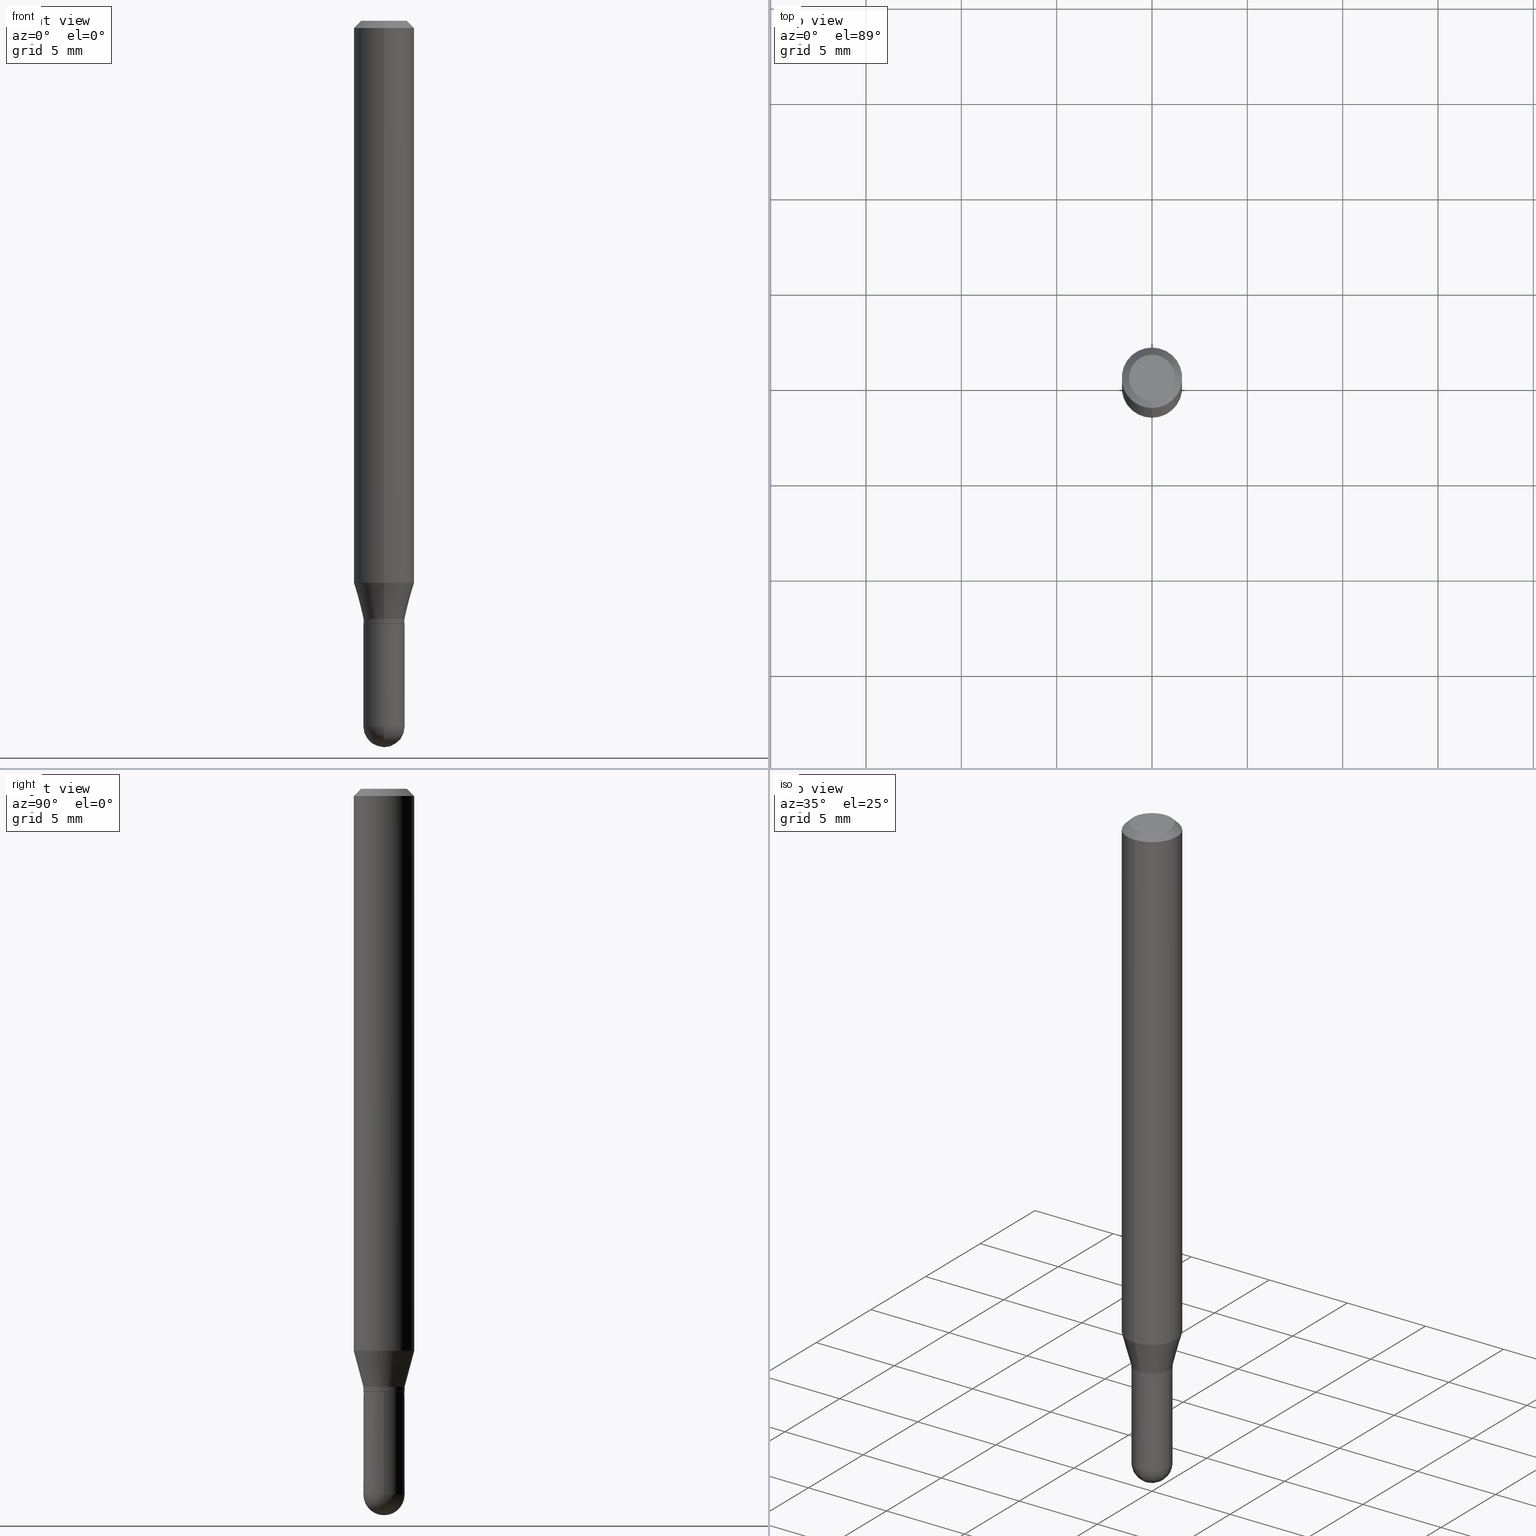
[diagram: canonical four-view strip — front | top / right | iso, engineering-drawing reading convention]
A machine part, canonical four-view strip (front | top / right | iso — engineering-drawing reading convention). The complete STEP part file that produces these views, byte-faithful:
ISO-10303-21;
HEADER;
FILE_DESCRIPTION (( 'STEP AP203' ),
    '1' );
FILE_NAME ('02631.STEP',
    '2024-03-07T20:54:33',
    ( '' ),
    ( '' ),
    'SwSTEP 2.0',
    'SolidWorks 2023',
    '' );
FILE_SCHEMA (( 'CONFIG_CONTROL_DESIGN' ));
ENDSEC;

DATA;
#1 = EDGE_LOOP ( 'NONE', ( #71, #469, #320, #224 ) ) ;
#2 = FACE_OUTER_BOUND ( 'NONE', #87, .T. ) ;
#3 = CLOSED_SHELL ( 'NONE', ( #455, #234, #332, #381, #203 ) ) ;
#4 = VECTOR ( 'NONE', #168, 39.37007874015748143 ) ;
#5 = APPLICATION_CONTEXT ( 'configuration controlled 3d designs of mechanical parts and assemblies' ) ;
#6 = CARTESIAN_POINT ( 'NONE',  ( -4.287811248607203282E-16, -0.06250000000000005551, -0.01500000000000011047 ) ) ;
#7 = EDGE_CURVE ( 'NONE', #108, #248, #500, .T. ) ;
#8 = ADVANCED_FACE ( 'NONE', ( #152 ), #307, .T. ) ;
#9 = ORIENTED_EDGE ( 'NONE', *, *, #295, .F. ) ;
#10 = CARTESIAN_POINT ( 'NONE',  ( -4.364351673553916201E-16, -0.06250000000000000000, 2.182108451735135262E-16 ) ) ;
#11 = CARTESIAN_POINT ( 'NONE',  ( -2.967759138016355400E-16, -0.04250000000000423578, -1.235000000000000098 ) ) ;
#12 = ORIENTED_EDGE ( 'NONE', *, *, #400, .T. ) ;
#13 = AXIS2_PLACEMENT_3D ( 'NONE', #191, #156, #352 ) ;
#14 = CC_DESIGN_APPROVAL ( #118, ( #294 ) ) ;
#15 = CARTESIAN_POINT ( 'NONE',  ( -3.773273898774340269E-16, -0.04749999999999999362, -1.623118266434685701E-16 ) ) ;
#16 = ORIENTED_EDGE ( 'NONE', *, *, #127, .T. ) ;
#17 = CARTESIAN_POINT ( 'NONE',  ( -2.932844324627926808E-16, -0.04200000000000434636, -1.244999999999999885 ) ) ;
#18 = ORIENTED_EDGE ( 'NONE', *, *, #247, .T. ) ;
#19 = PERSON_AND_ORGANIZATION_ROLE ( 'design_owner' ) ;
#20 = CIRCLE ( 'NONE', #506, 0.04250000000000000999 ) ;
#21 = AXIS2_PLACEMENT_3D ( 'NONE', #205, #243, #425 ) ;
#22 = APPROVAL_STATUS ( 'not_yet_approved' ) ;
#23 = DIRECTION ( 'NONE',  ( -2.445544093742278605E-29, 3.491373522776216420E-15, 1.000000000000000000 ) ) ;
#24 = EDGE_CURVE ( 'NONE', #415, #189, #485, .T. ) ;
#25 = CC_DESIGN_PERSON_AND_ORGANIZATION_ASSIGNMENT ( #237, #343, ( #294 ) ) ;
#26 = LINE ( 'NONE', #149, #157 ) ;
#27 = DIRECTION ( 'NONE',  ( -6.982962677686265922E-15, -1.000000000000000000, 0.000000000000000000 ) ) ;
#28 = ORIENTED_EDGE ( 'NONE', *, *, #148, .F. ) ;
#29 = APPROVAL_PERSON_ORGANIZATION ( #194, #394, #351 ) ;
#30 = CC_DESIGN_PERSON_AND_ORGANIZATION_ASSIGNMENT ( #401, #19, ( #470 ) ) ;
#31 = ORIENTED_EDGE ( 'NONE', *, *, #420, .T. ) ;
#32 = VERTEX_POINT ( 'NONE', #454 ) ;
#33 = CARTESIAN_POINT ( 'NONE',  ( 2.837709059571790746E-29, -4.051246633124596325E-15, -1.160358983848622572 ) ) ;
#34 = APPROVAL_STATUS ( 'not_yet_approved' ) ;
#35 = CARTESIAN_POINT ( 'NONE',  ( 4.440892098500912124E-16, 0.06249999999999598932, -1.160358983848622794 ) ) ;
#36 = APPROVAL_ROLE ( '' ) ;
#37 = AXIS2_PLACEMENT_3D ( 'NONE', #43, #116, #344 ) ;
#38 = CIRCLE ( 'NONE', #447, 0.04249999999999991979 ) ;
#39 = CARTESIAN_POINT ( 'NONE',  ( 8.025103541319487376E-45, -1.145701445064732670E-30, -3.281520689753388471E-16 ) ) ;
#40 = CC_DESIGN_APPROVAL ( #323, ( #200 ) ) ;
#41 = ADVANCED_FACE ( 'NONE', ( #413 ), #442, .T. ) ;
#42 = DIRECTION ( 'NONE',  ( -2.445468806185136597E-29, 3.491481338843145583E-15, 1.000000000000000000 ) ) ;
#43 = CARTESIAN_POINT ( 'NONE',  ( 3.564270785014837509E-29, -5.088834051363884851E-15, -1.457500000000000240 ) ) ;
#44 = ORIENTED_EDGE ( 'NONE', *, *, #261, .T. ) ;
#45 = CARTESIAN_POINT ( 'NONE',  ( 3.668316140613498255E-31, -5.237060284164438941E-17, -0.01500000000000032904 ) ) ;
#46 = VECTOR ( 'NONE', #147, 39.37007874015748143 ) ;
#47 = DIRECTION ( 'NONE',  ( -2.445544093742278605E-29, 3.491373522776216420E-15, 1.000000000000000000 ) ) ;
#48 = EDGE_LOOP ( 'NONE', ( #453, #44, #9, #137 ) ) ;
#49 = CARTESIAN_POINT ( 'NONE',  ( 2.837709059571790746E-29, -4.051246633124596325E-15, -1.160358983848622572 ) ) ;
#50 = ORIENTED_EDGE ( 'NONE', *, *, #98, .F. ) ;
#51 = EDGE_CURVE ( 'NONE', #399, #169, #183, .T. ) ;
#52 = LINE ( 'NONE', #472, #396 ) ;
#53 = CLOSED_SHELL ( 'NONE', ( #208, #232, #8, #41, #101, #117, #284, #274, #409, #288, #366, #77 ) ) ;
#54 = ORIENTED_EDGE ( 'NONE', *, *, #51, .T. ) ;
#55 = CIRCLE ( 'NONE', #166, 0.04250000000000009326 ) ;
#56 = ORIENTED_EDGE ( 'NONE', *, *, #131, .F. ) ;
#57 = CIRCLE ( 'NONE', #86, 0.06250000000000000000 ) ;
#58 = DIRECTION ( 'NONE',  ( -2.445544093742278605E-29, 3.491373522776216420E-15, 1.000000000000000000 ) ) ;
#59 = ORIENTED_EDGE ( 'NONE', *, *, #493, .F. ) ;
#60 = DIRECTION ( 'NONE',  ( -2.445544093742278605E-29, 3.491373522776216420E-15, 1.000000000000000000 ) ) ;
#61 = VERTEX_POINT ( 'NONE', #111 ) ;
#62 = PRODUCT_DEFINITION_SHAPE ( 'NONE', 'NONE',  #294 ) ;
#63 = LINE ( 'NONE', #405, #321 ) ;
#64 = DIRECTION ( 'NONE',  ( -2.445468806185136597E-29, 3.491481338843145583E-15, 1.000000000000000000 ) ) ;
#65 = VECTOR ( 'NONE', #260, 39.37007874015748143 ) ;
#66 = AXIS2_PLACEMENT_3D ( 'NONE', #356, #95, #355 ) ;
#67 = CARTESIAN_POINT ( 'NONE',  ( -4.364351673553912750E-16, -0.06250000000000005551, -0.01500000000000011047 ) ) ;
#68 = CARTESIAN_POINT ( 'NONE',  ( 3.730349362740815744E-16, 0.04249999999999561073, -1.235000000000000542 ) ) ;
#69 = ORIENTED_EDGE ( 'NONE', *, *, #98, .T. ) ;
#70 = ADVANCED_BREP_SHAPE_REPRESENTATION ( '02631', ( #91, #426, #269 ), #416 ) ;
#71 = ORIENTED_EDGE ( 'NONE', *, *, #264, .T. ) ;
#72 = CARTESIAN_POINT ( 'NONE',  ( 0.000000000000000000, 0.000000000000000000, 0.000000000000000000 ) ) ;
#73 = DIRECTION ( 'NONE',  ( 2.445544093742278605E-29, -3.491373522776216420E-15, -1.000000000000000000 ) ) ;
#74 = DIRECTION ( 'NONE',  ( -6.982962677686266711E-15, -1.000000000000000000, 6.427877632151220009E-15 ) ) ;
#75 = PERSON_AND_ORGANIZATION ( #367, #245 ) ;
#76 = DIRECTION ( 'NONE',  ( -2.445544093742278605E-29, 3.491373522776216420E-15, 1.000000000000000000 ) ) ;
#77 = ADVANCED_FACE ( 'NONE', ( #502 ), #379, .T. ) ;
#78 = EDGE_CURVE ( 'NONE', #399, #32, #196, .T. ) ;
#79 = AXIS2_PLACEMENT_3D ( 'NONE', #104, #331, #334 ) ;
#80 = AXIS2_PLACEMENT_3D ( 'NONE', #508, #310, #461 ) ;
#81 = DIRECTION ( 'NONE',  ( -6.982962677686266711E-15, -1.000000000000000000, 3.491373522776216420E-15 ) ) ;
#82 = DIRECTION ( 'NONE',  ( -2.445544093742278605E-29, 3.491373522776216420E-15, 1.000000000000000000 ) ) ;
#83 = CARTESIAN_POINT ( 'NONE',  ( 3.019806626980733170E-16, 0.04249999999999570788, -1.244500000000000606 ) ) ;
#84 = CARTESIAN_POINT ( 'NONE',  ( 3.044702396709137897E-29, -4.346760035856390206E-15, -1.245000000000000329 ) ) ;
#85 = EDGE_CURVE ( 'NONE', #415, #124, #146, .T. ) ;
#86 = AXIS2_PLACEMENT_3D ( 'NONE', #45, #289, #246 ) ;
#87 = EDGE_LOOP ( 'NONE', ( #325, #198, #18, #440 ) ) ;
#88 = ORIENTED_EDGE ( 'NONE', *, *, #143, .T. ) ;
#89 = DIRECTION ( 'NONE',  ( 2.445544093742278325E-29, -3.491373522776216420E-15, -1.000000000000000000 ) ) ;
#90 = DIRECTION ( 'NONE',  ( 2.445544093742278605E-29, -3.491373522776216420E-15, -1.000000000000000000 ) ) ;
#91 = MANIFOLD_SOLID_BREP ( 'Body-Move/Copy2[1]', #3 ) ;
#92 = ORIENTED_EDGE ( 'NONE', *, *, #24, .F. ) ;
#93 = FACE_OUTER_BOUND ( 'NONE', #408, .T. ) ;
#94 = ORIENTED_EDGE ( 'NONE', *, *, #217, .F. ) ;
#95 = DIRECTION ( 'NONE',  ( 1.000000000000000000, -6.982962677686265922E-15, 4.883557194083112901E-29 ) ) ;
#96 = VERTEX_POINT ( 'NONE', #68 ) ;
#97 = EDGE_LOOP ( 'NONE', ( #309, #180 ) ) ;
#98 = EDGE_CURVE ( 'NONE', #377, #61, #26, .T. ) ;
#99 = EDGE_CURVE ( 'NONE', #155, #108, #113, .T. ) ;
#100 =( NAMED_UNIT ( * ) PLANE_ANGLE_UNIT ( ) SI_UNIT ( $, .RADIAN. ) );
#101 = ADVANCED_FACE ( 'NONE', ( #282 ), #361, .T. ) ;
#102 = CARTESIAN_POINT ( 'NONE',  ( 3.564270785014837509E-29, -5.088834051363884851E-15, -1.457500000000000240 ) ) ;
#103 = FACE_OUTER_BOUND ( 'NONE', #178, .T. ) ;
#104 = CARTESIAN_POINT ( 'NONE',  ( 0.000000000000000000, 0.000000000000000000, 0.000000000000000000 ) ) ;
#105 = AXIS2_PLACEMENT_3D ( 'NONE', #185, #371, #145 ) ;
#106 = CYLINDRICAL_SURFACE ( 'NONE', #105, 0.04250000000000000999 ) ;
#107 = DIRECTION ( 'NONE',  ( -2.445544093742278605E-29, 3.491373522776216420E-15, 1.000000000000000000 ) ) ;
#108 = VERTEX_POINT ( 'NONE', #271 ) ;
#109 = SHAPE_DEFINITION_REPRESENTATION ( #62, #70 ) ;
#110 = ORIENTED_EDGE ( 'NONE', *, *, #247, .F. ) ;
#111 = CARTESIAN_POINT ( 'NONE',  ( 4.440892098500911138E-16, 0.06249999999999995143, -0.01500000000000054588 ) ) ;
#112 = APPLICATION_CONTEXT ( 'configuration controlled 3d designs of mechanical parts and assemblies' ) ;
#113 = CIRCLE ( 'NONE', #239, 0.04249999999999991979 ) ;
#114 = CONICAL_SURFACE ( 'NONE', #507, 0.04199999999999999567, 0.7853981633974739252 ) ;
#115 = APPROVAL_PERSON_ORGANIZATION ( #441, #118, #333 ) ;
#116 = DIRECTION ( 'NONE',  ( -2.445468806185136597E-29, 3.491481338843145583E-15, 1.000000000000000000 ) ) ;
#117 = ADVANCED_FACE ( 'NONE', ( #2 ), #457, .T. ) ;
#118 = APPROVAL ( #22, 'UNSPECIFIED' ) ;
#119 = CARTESIAN_POINT ( 'NONE',  ( 3.020246955771714794E-29, -4.311846300628628977E-15, -1.235000000000000320 ) ) ;
#120 = DATE_AND_TIME ( #503, #468 ) ;
#121 = DIRECTION ( 'NONE',  ( -2.445544093742278605E-29, 3.491373522776216420E-15, 1.000000000000000000 ) ) ;
#122 = SECURITY_CLASSIFICATION_LEVEL ( 'unclassified' ) ;
#123 = AXIS2_PLACEMENT_3D ( 'NONE', #419, #511, #422 ) ;
#124 = VERTEX_POINT ( 'NONE', #275 ) ;
#125 = LOCAL_TIME ( 15, 54, 33.00000000000000000, #460 ) ;
#126 = DIRECTION ( 'NONE',  ( -2.445544093742278605E-29, 3.491373522776216420E-15, 1.000000000000000000 ) ) ;
#127 = EDGE_CURVE ( 'NONE', #189, #399, #20, .T. ) ;
#128 = VERTEX_POINT ( 'NONE', #35 ) ;
#129 = DIRECTION ( 'NONE',  ( -6.982962677686266711E-15, -1.000000000000000000, 6.427877632151220009E-15 ) ) ;
#130 = DIRECTION ( 'NONE',  ( -2.445544093742278605E-29, 3.491373522776216420E-15, 1.000000000000000000 ) ) ;
#131 = EDGE_CURVE ( 'NONE', #155, #96, #204, .T. ) ;
#132 = ORIENTED_EDGE ( 'NONE', *, *, #24, .T. ) ;
#133 = CARTESIAN_POINT ( 'NONE',  ( 3.316907271900976096E-16, 0.04749999999999999362, -3.299162768195397005E-16 ) ) ;
#134 = AXIS2_PLACEMENT_3D ( 'NONE', #195, #353, #385 ) ;
#135 = DIRECTION ( 'NONE',  ( -2.445544093742278325E-29, 3.491373522776216420E-15, 1.000000000000000000 ) ) ;
#136 = FACE_OUTER_BOUND ( 'NONE', #364, .T. ) ;
#137 = ORIENTED_EDGE ( 'NONE', *, *, #400, .F. ) ;
#138 = SPHERICAL_SURFACE ( 'NONE', #66, 0.04250000000000009326 ) ;
#139 = ORIENTED_EDGE ( 'NONE', *, *, #300, .T. ) ;
#140 = ORIENTED_EDGE ( 'NONE', *, *, #131, .T. ) ;
#141 = CC_DESIGN_APPROVAL ( #394, ( #160 ) ) ;
#142 = PRODUCT_RELATED_PRODUCT_CATEGORY ( 'detail', '', ( #470 ) ) ;
#143 = EDGE_CURVE ( 'NONE', #32, #415, #259, .T. ) ;
#144 = ORIENTED_EDGE ( 'NONE', *, *, #78, .T. ) ;
#145 = DIRECTION ( 'NONE',  ( 1.000000000000000000, -6.982962677686266711E-15, 4.876176775795935793E-29 ) ) ;
#146 = LINE ( 'NONE', #296, #65 ) ;
#147 = DIRECTION ( 'NONE',  ( 5.024295867788190974E-15, 0.7071067811865681119, 0.7071067811865270336 ) ) ;
#148 = EDGE_CURVE ( 'NONE', #169, #124, #150, .T. ) ;
#149 = CARTESIAN_POINT ( 'NONE',  ( 4.364351673553919652E-16, 0.06249999999999995143, -0.01500000000000054588 ) ) ;
#150 = CIRCLE ( 'NONE', #497, 0.04249999999999999611 ) ;
#151 = CONICAL_SURFACE ( 'NONE', #173, 0.04199999999999999567, 0.7853981633974739252 ) ;
#152 = FACE_OUTER_BOUND ( 'NONE', #444, .T. ) ;
#153 = ORIENTED_EDGE ( 'NONE', *, *, #382, .T. ) ;
#154 = PERSON_AND_ORGANIZATION ( #367, #245 ) ;
#155 = VERTEX_POINT ( 'NONE', #83 ) ;
#156 = DIRECTION ( 'NONE',  ( -2.445468806185136597E-29, 3.491481338843145583E-15, 1.000000000000000000 ) ) ;
#157 = VECTOR ( 'NONE', #184, 39.37007874015748143 ) ;
#158 = CIRCLE ( 'NONE', #262, 0.04749999999999999362 ) ;
#159 = ORIENTED_EDGE ( 'NONE', *, *, #127, .F. ) ;
#160 = PRODUCT_DEFINITION_FORMATION_WITH_SPECIFIED_SOURCE ( 'ANY', '', #470, .NOT_KNOWN. ) ;
#161 = FACE_OUTER_BOUND ( 'NONE', #360, .T. ) ;
#162 = APPROVAL_DATE_TIME ( #202, #118 ) ;
#163 = CARTESIAN_POINT ( 'NONE',  ( -4.364351673553629746E-16, -0.06250000000000402456, -1.160358983848622350 ) ) ;
#164 = CALENDAR_DATE ( 2024, 7, 3 ) ;
#165 = LINE ( 'NONE', #327, #376 ) ;
#166 = AXIS2_PLACEMENT_3D ( 'NONE', #452, #498, #494 ) ;
#167 = DIRECTION ( 'NONE',  ( -2.445468806185136597E-29, 3.491481338843145583E-15, 1.000000000000000000 ) ) ;
#168 = DIRECTION ( 'NONE',  ( -2.445544093742278605E-29, 3.491373522776216420E-15, 1.000000000000000000 ) ) ;
#169 = VERTEX_POINT ( 'NONE', #380 ) ;
#170 = FACE_OUTER_BOUND ( 'NONE', #97, .T. ) ;
#171 = EDGE_CURVE ( 'NONE', #285, #369, #276, .T. ) ;
#172 = FACE_OUTER_BOUND ( 'NONE', #299, .T. ) ;
#173 = AXIS2_PLACEMENT_3D ( 'NONE', #438, #47, #218 ) ;
#174 = EDGE_CURVE ( 'NONE', #96, #248, #308, .T. ) ;
#175 = DIRECTION ( 'NONE',  ( -2.445544093742278605E-29, 3.491373522776216420E-15, 1.000000000000000000 ) ) ;
#176 = ORIENTED_EDGE ( 'NONE', *, *, #420, .F. ) ;
#177 = CARTESIAN_POINT ( 'NONE',  ( 3.560636328285825248E-29, -5.094038800260261442E-15, -1.457500000000000240 ) ) ;
#178 = EDGE_LOOP ( 'NONE', ( #16, #54, #176, #411, #132 ) ) ;
#179 = CARTESIAN_POINT ( 'NONE',  ( 3.044608663700495534E-29, -4.346894266859716647E-15, -1.245000000000000329 ) ) ;
#180 = ORIENTED_EDGE ( 'NONE', *, *, #192, .T. ) ;
#181 = CIRCLE ( 'NONE', #80, 0.04749999999999999362 ) ;
#182 =( LENGTH_UNIT ( ) NAMED_UNIT ( * ) SI_UNIT ( $, .METRE. ) );
#183 = LINE ( 'NONE', #302, #375 ) ;
#184 = DIRECTION ( 'NONE',  ( 4.937700262164548042E-15, 0.7071067811865451302, -0.7071067811865499042 ) ) ;
#185 = CARTESIAN_POINT ( 'NONE',  ( 0.000000000000000000, 0.000000000000000000, 0.000000000000000000 ) ) ;
#186 = ORIENTED_EDGE ( 'NONE', *, *, #51, .F. ) ;
#187 = CIRCLE ( 'NONE', #330, 0.06250000000000000000 ) ;
#188 = CARTESIAN_POINT ( 'NONE',  ( 2.984279490192724677E-16, 0.04199999999999565192, -1.245000000000000551 ) ) ;
#189 = VERTEX_POINT ( 'NONE', #466 ) ;
#190 = ORIENTED_EDGE ( 'NONE', *, *, #510, .F. ) ;
#191 = CARTESIAN_POINT ( 'NONE',  ( 0.000000000000000000, 0.000000000000000000, 0.000000000000000000 ) ) ;
#192 = EDGE_CURVE ( 'NONE', #291, #377, #158, .T. ) ;
#193 = EDGE_CURVE ( 'NONE', #222, #128, #187, .T. ) ;
#194 = PERSON_AND_ORGANIZATION ( #367, #245 ) ;
#195 = CARTESIAN_POINT ( 'NONE',  ( 3.044702396709137897E-29, -4.346760035856390206E-15, -1.245000000000000329 ) ) ;
#196 = CIRCLE ( 'NONE', #445, 0.04250000000000000999 ) ;
#197 = AXIS2_PLACEMENT_3D ( 'NONE', #133, #89, #393 ) ;
#198 = ORIENTED_EDGE ( 'NONE', *, *, #174, .T. ) ;
#199 = APPROVAL_STATUS ( 'not_yet_approved' ) ;
#200 = SECURITY_CLASSIFICATION ( '', '', #122 ) ;
#201 = CARTESIAN_POINT ( 'NONE',  ( 3.020246955771714794E-29, -4.311846300628628977E-15, -1.235000000000000320 ) ) ;
#202 = DATE_AND_TIME ( #509, #348 ) ;
#203 = ADVANCED_FACE ( 'NONE', ( #387 ), #504, .T. ) ;
#204 = LINE ( 'NONE', #236, #476 ) ;
#205 = CARTESIAN_POINT ( 'NONE',  ( 3.020246955771714794E-29, -4.311846300628628977E-15, -1.235000000000000320 ) ) ;
#206 = DIRECTION ( 'NONE',  ( -1.000000000000000000, 6.982962677686265922E-15, -4.876176775795935793E-29 ) ) ;
#207 = DIRECTION ( 'NONE',  ( -2.445544093742278605E-29, 3.491373522776216420E-15, 1.000000000000000000 ) ) ;
#208 = ADVANCED_FACE ( 'NONE', ( #161 ), #306, .T. ) ;
#209 = EDGE_CURVE ( 'NONE', #61, #477, #347, .T. ) ;
#210 = ORIENTED_EDGE ( 'NONE', *, *, #473, .T. ) ;
#211 = CARTESIAN_POINT ( 'NONE',  ( 3.840629472727447874E-16, 0.04749999999999999362, -4.939923113072091241E-16 ) ) ;
#212 = CARTESIAN_POINT ( 'NONE',  ( 0.000000000000000000, 0.000000000000000000, 0.000000000000000000 ) ) ;
#213 = AXIS2_PLACEMENT_3D ( 'NONE', #265, #370, #233 ) ;
#214 = AXIS2_PLACEMENT_3D ( 'NONE', #179, #297, #403 ) ;
#215 = ORIENTED_EDGE ( 'NONE', *, *, #7, .F. ) ;
#216 = ORIENTED_EDGE ( 'NONE', *, *, #99, .F. ) ;
#217 = EDGE_CURVE ( 'NONE', #377, #291, #181, .T. ) ;
#218 = DIRECTION ( 'NONE',  ( -6.982962677686265922E-15, -1.000000000000000000, 6.504399984914913214E-15 ) ) ;
#219 = CARTESIAN_POINT ( 'NONE',  ( -2.932844324627926808E-16, -0.04200000000000434636, -1.244999999999999885 ) ) ;
#220 =( CONVERSION_BASED_UNIT ( 'INCH', #410 ) LENGTH_UNIT ( ) NAMED_UNIT ( #490 ) );
#221 = AXIS2_PLACEMENT_3D ( 'NONE', #201, #317, #129 ) ;
#222 = VERTEX_POINT ( 'NONE', #163 ) ;
#223 = AXIS2_PLACEMENT_3D ( 'NONE', #84, #135, #363 ) ;
#224 = ORIENTED_EDGE ( 'NONE', *, *, #474, .F. ) ;
#225 = CC_DESIGN_PERSON_AND_ORGANIZATION_ASSIGNMENT ( #75, #311, ( #160 ) ) ;
#226 = EDGE_LOOP ( 'NONE', ( #230, #94, #69, #417 ) ) ;
#227 = APPLICATION_PROTOCOL_DEFINITION ( 'international standard', 'config_control_design', 1994, #5 ) ;
#228 = ORIENTED_EDGE ( 'NONE', *, *, #261, .F. ) ;
#229 = ORIENTED_EDGE ( 'NONE', *, *, #171, .T. ) ;
#230 = ORIENTED_EDGE ( 'NONE', *, *, #382, .F. ) ;
#231 = AXIS2_PLACEMENT_3D ( 'NONE', #287, #130, #479 ) ;
#232 = ADVANCED_FACE ( 'NONE', ( #242 ), #114, .T. ) ;
#233 = DIRECTION ( 'NONE',  ( 1.000000000000000000, -6.982962677686273810E-15, 0.000000000000000000 ) ) ;
#234 = ADVANCED_FACE ( 'NONE', ( #241 ), #388, .T. ) ;
#235 = CALENDAR_DATE ( 2024, 7, 3 ) ;
#236 = CARTESIAN_POINT ( 'NONE',  ( 3.019806626980419597E-16, 0.04249999999999991979, -1.483833747179889227E-16 ) ) ;
#237 = PERSON_AND_ORGANIZATION ( #367, #245 ) ;
#238 = DIRECTION ( 'NONE',  ( 1.000000000000000000, -6.982962677686265133E-15, 0.000000000000000000 ) ) ;
#239 = AXIS2_PLACEMENT_3D ( 'NONE', #336, #107, #281 ) ;
#240 = AXIS2_PLACEMENT_3D ( 'NONE', #431, #90, #428 ) ;
#241 = FACE_OUTER_BOUND ( 'NONE', #412, .T. ) ;
#242 = FACE_OUTER_BOUND ( 'NONE', #1, .T. ) ;
#243 = DIRECTION ( 'NONE',  ( -2.445544093742278605E-29, 3.491373522776216420E-15, 1.000000000000000000 ) ) ;
#244 = VECTOR ( 'NONE', #448, 39.37007874015748143 ) ;
#245 = ORGANIZATION ( 'UNSPECIFIED', 'UNSPECIFIED', '' ) ;
#246 = DIRECTION ( 'NONE',  ( -6.982962677686265922E-15, -1.000000000000000000, 3.483106191921935554E-15 ) ) ;
#247 = EDGE_CURVE ( 'NONE', #248, #222, #165, .T. ) ;
#248 = VERTEX_POINT ( 'NONE', #11 ) ;
#249 = CARTESIAN_POINT ( 'NONE',  ( -0.04250000000000000999, -4.415883496413759874E-15, -1.457500000000000240 ) ) ;
#250 = PLANE ( 'NONE',  #223 ) ;
#251 = ORIENTED_EDGE ( 'NONE', *, *, #192, .F. ) ;
#252 = CC_DESIGN_DATE_AND_TIME_ASSIGNMENT ( #120, #278, ( #200 ) ) ;
#253 = DIRECTION ( 'NONE',  ( 2.438088387897960049E-29, -3.491481338843145188E-15, -1.000000000000000000 ) ) ;
#254 = ORIENTED_EDGE ( 'NONE', *, *, #143, .F. ) ;
#255 = VERTEX_POINT ( 'NONE', #283 ) ;
#256 = DIRECTION ( 'NONE',  ( -1.000000000000000000, 6.982962677686265922E-15, -4.883557194083112340E-29 ) ) ;
#257 = ORIENTED_EDGE ( 'NONE', *, *, #171, .F. ) ;
#258 = LINE ( 'NONE', #188, #46 ) ;
#259 = CIRCLE ( 'NONE', #37, 0.04250000000000000999 ) ;
#260 = DIRECTION ( 'NONE',  ( -2.445468806185136877E-29, 3.491481338843145188E-15, 1.000000000000000000 ) ) ;
#261 = EDGE_CURVE ( 'NONE', #128, #61, #52, .T. ) ;
#262 = AXIS2_PLACEMENT_3D ( 'NONE', #39, #350, #423 ) ;
#263 = DIRECTION ( 'NONE',  ( -2.445544093742278605E-29, 3.491373522776216420E-15, 1.000000000000000000 ) ) ;
#264 = EDGE_CURVE ( 'NONE', #369, #285, #316, .T. ) ;
#265 = CARTESIAN_POINT ( 'NONE',  ( 3.564270785014837509E-29, -5.088834051363884851E-15, -1.457500000000000240 ) ) ;
#266 = MECHANICAL_CONTEXT ( 'NONE', #5, 'mechanical' ) ;
#267 = CARTESIAN_POINT ( 'NONE',  ( 3.668316140613498255E-31, -5.237060284164438941E-17, -0.01500000000000032904 ) ) ;
#268 = EDGE_LOOP ( 'NONE', ( #186, #144, #88, #430, #28 ) ) ;
#269 = AXIS2_PLACEMENT_3D ( 'NONE', #335, #373, #337 ) ;
#270 = COORDINATED_UNIVERSAL_TIME_OFFSET ( 5, 0, .BEHIND. ) ;
#271 = CARTESIAN_POINT ( 'NONE',  ( -2.967759138016344061E-16, -0.04250000000000413863, -1.244500000000000162 ) ) ;
#272 = ORIENTED_EDGE ( 'NONE', *, *, #484, .F. ) ;
#273 = DIRECTION ( 'NONE',  ( -2.445544093742278605E-29, 3.491373522776216420E-15, 1.000000000000000000 ) ) ;
#274 = ADVANCED_FACE ( 'NONE', ( #362 ), #301, .T. ) ;
#275 = CARTESIAN_POINT ( 'NONE',  ( 0.04249999999999999611, -4.643670180661383298E-15, -1.245000000000000329 ) ) ;
#276 = CIRCLE ( 'NONE', #134, 0.04199999999999999567 ) ;
#277 = CIRCLE ( 'NONE', #354, 0.04250000000000009326 ) ;
#278 = DATE_TIME_ROLE ( 'classification_date' ) ;
#279 = LOCAL_TIME ( 15, 54, 33.00000000000000000, #270 ) ;
#280 = ORIENTED_EDGE ( 'NONE', *, *, #148, .T. ) ;
#281 = DIRECTION ( 'NONE',  ( -6.982962677686266711E-15, -1.000000000000000000, 6.427877632151220009E-15 ) ) ;
#282 = FACE_OUTER_BOUND ( 'NONE', #439, .T. ) ;
#283 = CARTESIAN_POINT ( 'NONE',  ( 3.662751524184187344E-29, -5.245029131609283457E-15, -1.500000000000000444 ) ) ;
#284 = ADVANCED_FACE ( 'NONE', ( #93 ), #359, .T. ) ;
#285 = VERTEX_POINT ( 'NONE', #318 ) ;
#286 = CARTESIAN_POINT ( 'NONE',  ( 2.967759138016967261E-16, 0.04249999999999565237, -1.245000000000000551 ) ) ;
#287 = CARTESIAN_POINT ( 'NONE',  ( 3.044702396709137897E-29, -4.346760035856390206E-15, -1.245000000000000329 ) ) ;
#288 = ADVANCED_FACE ( 'NONE', ( #433 ), #250, .F. ) ;
#289 = DIRECTION ( 'NONE',  ( -2.445544093742278605E-29, 3.491373522776216420E-15, 1.000000000000000000 ) ) ;
#290 = AXIS2_PLACEMENT_3D ( 'NONE', #49, #175, #326 ) ;
#291 = VERTEX_POINT ( 'NONE', #15 ) ;
#292 = APPLICATION_PROTOCOL_DEFINITION ( 'international standard', 'config_control_design', 1994, #112 ) ;
#293 = DIRECTION ( 'NONE',  ( 6.982962677686265922E-15, 1.000000000000000000, -3.483106191921935554E-15 ) ) ;
#294 = PRODUCT_DEFINITION ( 'UNKNOWN', '', #160, #298 ) ;
#295 = EDGE_CURVE ( 'NONE', #477, #61, #57, .T. ) ;
#296 = CARTESIAN_POINT ( 'NONE',  ( 0.04250000000000000999, -2.967759138016664042E-16, 2.072375129713273202E-30 ) ) ;
#297 = DIRECTION ( 'NONE',  ( -2.445468806185136597E-29, 3.491481338843145583E-15, 1.000000000000000000 ) ) ;
#298 = DESIGN_CONTEXT ( 'detailed design', #112, 'design' ) ;
#299 = EDGE_LOOP ( 'NONE', ( #31, #280 ) ) ;
#300 = EDGE_CURVE ( 'NONE', #128, #222, #339, .T. ) ;
#301 = CONICAL_SURFACE ( 'NONE', #240, 0.06250000000000000000, 0.7853981633974483900 ) ;
#302 = CARTESIAN_POINT ( 'NONE',  ( -0.04250000000000000999, 3.019806626980426500E-16, -2.090547413358335560E-30 ) ) ;
#303 = DIRECTION ( 'NONE',  ( -4.937700262164674260E-15, -0.7071067811865632269, 0.7071067811865319186 ) ) ;
#304 = ORIENTED_EDGE ( 'NONE', *, *, #484, .T. ) ;
#305 = PERSON_AND_ORGANIZATION ( #367, #245 ) ;
#306 = CYLINDRICAL_SURFACE ( 'NONE', #386, 0.04249999999999991979 ) ;
#307 = CONICAL_SURFACE ( 'NONE', #429, 0.06250000000000000000, 0.7853981633974483900 ) ;
#308 = CIRCLE ( 'NONE', #21, 0.04249999999999991979 ) ;
#309 = ORIENTED_EDGE ( 'NONE', *, *, #217, .T. ) ;
#310 = DIRECTION ( 'NONE',  ( -2.445544093742278605E-29, 3.491373522776216420E-15, 1.000000000000000000 ) ) ;
#311 = PERSON_AND_ORGANIZATION_ROLE ( 'creator' ) ;
#312 = CARTESIAN_POINT ( 'NONE',  ( 3.044702396709137897E-29, -4.346760035856390206E-15, -1.245000000000000329 ) ) ;
#313 = DATE_AND_TIME ( #164, #279 ) ;
#314 = DIRECTION ( 'NONE',  ( 1.000000000000000000, -6.982962677686273810E-15, 0.000000000000000000 ) ) ;
#315 = AXIS2_PLACEMENT_3D ( 'NONE', #72, #23, #496 ) ;
#316 = CIRCLE ( 'NONE', #231, 0.04199999999999999567 ) ;
#317 = DIRECTION ( 'NONE',  ( -2.445544093742278605E-29, 3.491373522776216420E-15, 1.000000000000000000 ) ) ;
#318 = CARTESIAN_POINT ( 'NONE',  ( 3.002043058586724733E-16, 0.04199999999999565192, -1.245000000000000551 ) ) ;
#319 = LINE ( 'NONE', #6, #406 ) ;
#320 = ORIENTED_EDGE ( 'NONE', *, *, #451, .F. ) ;
#321 = VECTOR ( 'NONE', #487, 39.37007874015748143 ) ;
#322 = ORIENTED_EDGE ( 'NONE', *, *, #193, .F. ) ;
#323 = APPROVAL ( #34, 'UNSPECIFIED' ) ;
#324 = DIRECTION ( 'NONE',  ( -6.982962677686265922E-15, -1.000000000000000000, 6.427877632151193188E-15 ) ) ;
#325 = ORIENTED_EDGE ( 'NONE', *, *, #473, .F. ) ;
#326 = DIRECTION ( 'NONE',  ( -6.982962677686265922E-15, -1.000000000000000000, 4.370956789862821150E-15 ) ) ;
#327 = CARTESIAN_POINT ( 'NONE',  ( -2.967759138016355400E-16, -0.04250000000000423578, -1.235000000000000098 ) ) ;
#328 = EDGE_LOOP ( 'NONE', ( #59, #229, #491, #216 ) ) ;
#329 = CARTESIAN_POINT ( 'NONE',  ( 0.04250000000000000999, -5.014640072913468189E-15, -1.457500000000000240 ) ) ;
#330 = AXIS2_PLACEMENT_3D ( 'NONE', #33, #82, #346 ) ;
#331 = DIRECTION ( 'NONE',  ( -2.445544093742278605E-29, 3.491373522776216420E-15, 1.000000000000000000 ) ) ;
#332 = ADVANCED_FACE ( 'NONE', ( #172 ), #481, .F. ) ;
#333 = APPROVAL_ROLE ( '' ) ;
#334 = DIRECTION ( 'NONE',  ( -6.982962677686266711E-15, -1.000000000000000000, 3.491373522776216420E-15 ) ) ;
#335 = CARTESIAN_POINT ( 'NONE',  ( 0.000000000000000000, 0.000000000000000000, 0.000000000000000000 ) ) ;
#336 = CARTESIAN_POINT ( 'NONE',  ( 3.043479624662266601E-29, -4.345014349095002184E-15, -1.244500000000000384 ) ) ;
#337 = DIRECTION ( 'NONE',  ( 1.000000000000000000, 0.000000000000000000, 0.000000000000000000 ) ) ;
#338 = AXIS2_PLACEMENT_3D ( 'NONE', #119, #121, #74 ) ;
#339 = CIRCLE ( 'NONE', #290, 0.06250000000000000000 ) ;
#340 = ORIENTED_EDGE ( 'NONE', *, *, #99, .T. ) ;
#341 =( NAMED_UNIT ( * ) SI_UNIT ( $, .STERADIAN. ) SOLID_ANGLE_UNIT ( ) );
#342 = DIRECTION ( 'NONE',  ( -2.445468806185136877E-29, 3.491481338843145188E-15, 1.000000000000000000 ) ) ;
#343 = PERSON_AND_ORGANIZATION_ROLE ( 'creator' ) ;
#344 = DIRECTION ( 'NONE',  ( 1.000000000000000000, -6.982962677686273810E-15, 0.000000000000000000 ) ) ;
#345 = PERSON_AND_ORGANIZATION_ROLE ( 'classification_officer' ) ;
#346 = DIRECTION ( 'NONE',  ( -6.982962677686265922E-15, -1.000000000000000000, 4.370956789862821150E-15 ) ) ;
#347 = CIRCLE ( 'NONE', #123, 0.06250000000000000000 ) ;
#348 = LOCAL_TIME ( 15, 54, 33.00000000000000000, #378 ) ;
#349 = DATE_AND_TIME ( #505, #407 ) ;
#350 = DIRECTION ( 'NONE',  ( -2.445544093742278605E-29, 3.491373522776216420E-15, 1.000000000000000000 ) ) ;
#351 = APPROVAL_ROLE ( '' ) ;
#352 = DIRECTION ( 'NONE',  ( 1.000000000000000000, -6.982962677686266711E-15, 4.876176775795935793E-29 ) ) ;
#353 = DIRECTION ( 'NONE',  ( -2.445544093742278605E-29, 3.491373522776216420E-15, 1.000000000000000000 ) ) ;
#354 = AXIS2_PLACEMENT_3D ( 'NONE', #443, #256, #27 ) ;
#355 = DIRECTION ( 'NONE',  ( -6.982962677686265922E-15, -1.000000000000000000, 6.427877632151193188E-15 ) ) ;
#356 = CARTESIAN_POINT ( 'NONE',  ( 3.560636328285825248E-29, -5.094038800260261442E-15, -1.457500000000000240 ) ) ;
#357 = ORIENTED_EDGE ( 'NONE', *, *, #451, .T. ) ;
#358 = ORIENTED_EDGE ( 'NONE', *, *, #492, .T. ) ;
#359 = CYLINDRICAL_SURFACE ( 'NONE', #424, 0.06250000000000000000 ) ;
#360 = EDGE_LOOP ( 'NONE', ( #357, #140, #190, #215 ) ) ;
#361 = CONICAL_SURFACE ( 'NONE', #221, 0.04249999999999991979, 0.2617993877991497409 ) ;
#362 = FACE_OUTER_BOUND ( 'NONE', #226, .T. ) ;
#363 = DIRECTION ( 'NONE',  ( -6.982962677686265922E-15, -1.000000000000000000, 3.491373522776216420E-15 ) ) ;
#364 = EDGE_LOOP ( 'NONE', ( #398, #304, #435, #159 ) ) ;
#365 = CARTESIAN_POINT ( 'NONE',  ( 3.020246955771714794E-29, -4.311846300628628977E-15, -1.235000000000000320 ) ) ;
#366 = ADVANCED_FACE ( 'NONE', ( #391 ), #151, .T. ) ;
#367 = PERSON ( 'UNSPECIFIED', 'UNSPECIFIED', 'UNSPECIFIED', ('UNSPECIFIED'), ('UNSPECIFIED'), ('UNSPECIFIED') ) ;
#368 = AXIS2_PLACEMENT_3D ( 'NONE', #286, #253, #206 ) ;
#369 = VERTEX_POINT ( 'NONE', #17 ) ;
#370 = DIRECTION ( 'NONE',  ( -2.445468806185136597E-29, 3.491481338843145583E-15, 1.000000000000000000 ) ) ;
#371 = DIRECTION ( 'NONE',  ( -2.445468806185136597E-29, 3.491481338843145583E-15, 1.000000000000000000 ) ) ;
#372 = DIRECTION ( 'NONE',  ( 1.000000000000000000, -6.982962677686273810E-15, 0.000000000000000000 ) ) ;
#373 = DIRECTION ( 'NONE',  ( 0.000000000000000000, 0.000000000000000000, 1.000000000000000000 ) ) ;
#374 = ORIENTED_EDGE ( 'NONE', *, *, #510, .T. ) ;
#375 = VECTOR ( 'NONE', #342, 39.37007874015748143 ) ;
#376 = VECTOR ( 'NONE', #434, 39.37007874015748854 ) ;
#377 = VERTEX_POINT ( 'NONE', #211 ) ;
#378 = COORDINATED_UNIVERSAL_TIME_OFFSET ( 5, 0, .BEHIND. ) ;
#379 = CYLINDRICAL_SURFACE ( 'NONE', #79, 0.04249999999999991979 ) ;
#380 = CARTESIAN_POINT ( 'NONE',  ( -0.04249999999999999611, -4.415883496413758296E-15, -1.245000000000000329 ) ) ;
#381 = ADVANCED_FACE ( 'NONE', ( #136 ), #138, .T. ) ;
#382 = EDGE_CURVE ( 'NONE', #291, #477, #319, .T. ) ;
#383 = ORIENTED_EDGE ( 'NONE', *, *, #209, .F. ) ;
#384 = COORDINATED_UNIVERSAL_TIME_OFFSET ( 5, 0, .BEHIND. ) ;
#385 = DIRECTION ( 'NONE',  ( -6.982962677686265922E-15, -1.000000000000000000, 6.504399984914913214E-15 ) ) ;
#386 = AXIS2_PLACEMENT_3D ( 'NONE', #458, #273, #81 ) ;
#387 = FACE_OUTER_BOUND ( 'NONE', #268, .T. ) ;
#388 = SPHERICAL_SURFACE ( 'NONE', #437, 0.04250000000000009326 ) ;
#389 = DIRECTION ( 'NONE',  ( 1.000000000000000000, -6.982962677686265922E-15, 4.883557194083112901E-29 ) ) ;
#390 = APPROVAL_PERSON_ORGANIZATION ( #305, #323, #36 ) ;
#391 = FACE_OUTER_BOUND ( 'NONE', #328, .T. ) ;
#392 = EDGE_LOOP ( 'NONE', ( #482, #257 ) ) ;
#393 = DIRECTION ( 'NONE',  ( 6.982962677686265922E-15, 1.000000000000000000, -3.491373522776216420E-15 ) ) ;
#394 = APPROVAL ( #199, 'UNSPECIFIED' ) ;
#395 = DIRECTION ( 'NONE',  ( -4.851104656540964275E-15, -0.7071067811865500152, -0.7071067811865450192 ) ) ;
#396 = VECTOR ( 'NONE', #58, 39.37007874015748143 ) ;
#397 = DIRECTION ( 'NONE',  ( -6.982962677686265922E-15, -1.000000000000000000, 3.491373522776216420E-15 ) ) ;
#398 = ORIENTED_EDGE ( 'NONE', *, *, #492, .F. ) ;
#399 = VERTEX_POINT ( 'NONE', #249 ) ;
#400 = EDGE_CURVE ( 'NONE', #222, #477, #483, .T. ) ;
#401 = PERSON_AND_ORGANIZATION ( #367, #245 ) ;
#402 = ORIENTED_EDGE ( 'NONE', *, *, #7, .T. ) ;
#403 = DIRECTION ( 'NONE',  ( 1.000000000000000000, -6.982962677686265133E-15, 0.000000000000000000 ) ) ;
#404 = CARTESIAN_POINT ( 'NONE',  ( -2.967759138016657633E-16, -0.04249999999999991979, 1.483833747179889227E-16 ) ) ;
#405 = CARTESIAN_POINT ( 'NONE',  ( 3.019806626980721830E-16, 0.04249999999999561073, -1.235000000000000542 ) ) ;
#406 = VECTOR ( 'NONE', #395, 39.37007874015748143 ) ;
#407 = LOCAL_TIME ( 15, 54, 33.00000000000000000, #456 ) ;
#408 = EDGE_LOOP ( 'NONE', ( #228, #139, #12, #383 ) ) ;
#409 = ADVANCED_FACE ( 'NONE', ( #170 ), #475, .F. ) ;
#410 = LENGTH_MEASURE_WITH_UNIT ( LENGTH_MEASURE( 0.02539999999999999897 ), #182 );
#411 = ORIENTED_EDGE ( 'NONE', *, *, #85, .F. ) ;
#412 = EDGE_LOOP ( 'NONE', ( #272, #358, #92, #254 ) ) ;
#413 = FACE_OUTER_BOUND ( 'NONE', #48, .T. ) ;
#414 = PERSON_AND_ORGANIZATION_ROLE ( 'design_supplier' ) ;
#415 = VERTEX_POINT ( 'NONE', #329 ) ;
#416 =( GEOMETRIC_REPRESENTATION_CONTEXT ( 3 ) GLOBAL_UNCERTAINTY_ASSIGNED_CONTEXT ( ( #495 ) ) GLOBAL_UNIT_ASSIGNED_CONTEXT ( ( #220, #100, #341 ) ) REPRESENTATION_CONTEXT ( 'NONE', 'WORKASPACE' ) );
#417 = ORIENTED_EDGE ( 'NONE', *, *, #209, .T. ) ;
#418 = APPROVAL_DATE_TIME ( #313, #323 ) ;
#419 = CARTESIAN_POINT ( 'NONE',  ( 3.668316140613498255E-31, -5.237060284164438941E-17, -0.01500000000000032904 ) ) ;
#420 = EDGE_CURVE ( 'NONE', #124, #169, #478, .T. ) ;
#421 = DATE_TIME_ROLE ( 'creation_date' ) ;
#422 = DIRECTION ( 'NONE',  ( -6.982962677686265922E-15, -1.000000000000000000, 3.483106191921935554E-15 ) ) ;
#423 = DIRECTION ( 'NONE',  ( -6.982962677686266711E-15, -1.000000000000000000, 3.491373522776216814E-15 ) ) ;
#424 = AXIS2_PLACEMENT_3D ( 'NONE', #212, #207, #397 ) ;
#425 = DIRECTION ( 'NONE',  ( -6.982962677686266711E-15, -1.000000000000000000, 6.427877632151220009E-15 ) ) ;
#426 = MANIFOLD_SOLID_BREP ( 'Body-Move/Copy2[2]', #53 ) ;
#427 = CARTESIAN_POINT ( 'NONE',  ( 3.564270785014837509E-29, -5.088834051363884851E-15, -1.457500000000000240 ) ) ;
#428 = DIRECTION ( 'NONE',  ( 6.982962677686265922E-15, 1.000000000000000000, -3.483106191921935554E-15 ) ) ;
#429 = AXIS2_PLACEMENT_3D ( 'NONE', #267, #73, #293 ) ;
#430 = ORIENTED_EDGE ( 'NONE', *, *, #85, .T. ) ;
#431 = CARTESIAN_POINT ( 'NONE',  ( 3.668316140613498255E-31, -5.237060284164438941E-17, -0.01500000000000032904 ) ) ;
#432 = CC_DESIGN_PERSON_AND_ORGANIZATION_ASSIGNMENT ( #154, #345, ( #200 ) ) ;
#433 = FACE_OUTER_BOUND ( 'NONE', #392, .T. ) ;
#434 = DIRECTION ( 'NONE',  ( -1.807323732225326589E-15, -0.2588190451025176864, 0.9659258262890690894 ) ) ;
#435 = ORIENTED_EDGE ( 'NONE', *, *, #78, .F. ) ;
#436 = CC_DESIGN_PERSON_AND_ORGANIZATION_ASSIGNMENT ( #462, #414, ( #160 ) ) ;
#437 = AXIS2_PLACEMENT_3D ( 'NONE', #177, #389, #324 ) ;
#438 = CARTESIAN_POINT ( 'NONE',  ( 3.044702396709137897E-29, -4.346760035856390206E-15, -1.245000000000000329 ) ) ;
#439 = EDGE_LOOP ( 'NONE', ( #374, #210, #322, #110 ) ) ;
#440 = ORIENTED_EDGE ( 'NONE', *, *, #300, .F. ) ;
#441 = PERSON_AND_ORGANIZATION ( #367, #245 ) ;
#442 = CYLINDRICAL_SURFACE ( 'NONE', #315, 0.06250000000000000000 ) ;
#443 = CARTESIAN_POINT ( 'NONE',  ( 3.560636328285825248E-29, -5.094038800260261442E-15, -1.457500000000000240 ) ) ;
#444 = EDGE_LOOP ( 'NONE', ( #251, #153, #480, #50 ) ) ;
#445 = AXIS2_PLACEMENT_3D ( 'NONE', #102, #64, #372 ) ;
#446 = LINE ( 'NONE', #219, #499 ) ;
#447 = AXIS2_PLACEMENT_3D ( 'NONE', #501, #60, #489 ) ;
#448 = DIRECTION ( 'NONE',  ( -2.445544093742278605E-29, 3.491373522776216420E-15, 1.000000000000000000 ) ) ;
#449 = DIRECTION ( 'NONE',  ( -6.982962677686266711E-15, -1.000000000000000000, 6.427877632151220009E-15 ) ) ;
#450 = EDGE_LOOP ( 'NONE', ( #56, #340, #402, #488 ) ) ;
#451 = EDGE_CURVE ( 'NONE', #108, #155, #38, .T. ) ;
#452 = CARTESIAN_POINT ( 'NONE',  ( 3.560636328285825248E-29, -5.094038800260261442E-15, -1.457500000000000240 ) ) ;
#453 = ORIENTED_EDGE ( 'NONE', *, *, #193, .T. ) ;
#454 = CARTESIAN_POINT ( 'NONE',  ( -2.967759138016310534E-16, -0.04250000000000514477, -1.457500000000000018 ) ) ;
#455 = ADVANCED_FACE ( 'NONE', ( #103 ), #106, .T. ) ;
#456 = COORDINATED_UNIVERSAL_TIME_OFFSET ( 5, 0, .BEHIND. ) ;
#457 = CONICAL_SURFACE ( 'NONE', #338, 0.04249999999999991979, 0.2617993877991497409 ) ;
#458 = CARTESIAN_POINT ( 'NONE',  ( 0.000000000000000000, 0.000000000000000000, 0.000000000000000000 ) ) ;
#459 = CC_DESIGN_SECURITY_CLASSIFICATION ( #200, ( #160 ) ) ;
#460 = COORDINATED_UNIVERSAL_TIME_OFFSET ( 5, 0, .BEHIND. ) ;
#461 = DIRECTION ( 'NONE',  ( -6.982962677686266711E-15, -1.000000000000000000, 3.491373522776216814E-15 ) ) ;
#462 = PERSON_AND_ORGANIZATION ( #367, #245 ) ;
#463 = DIRECTION ( 'NONE',  ( -6.982962677686265922E-15, -1.000000000000000000, 6.504399984914913214E-15 ) ) ;
#464 = CC_DESIGN_DATE_AND_TIME_ASSIGNMENT ( #465, #421, ( #294 ) ) ;
#465 = DATE_AND_TIME ( #235, #125 ) ;
#466 = CARTESIAN_POINT ( 'NONE',  ( 3.019806626980785432E-16, 0.04249999999999495154, -1.457500000000000462 ) ) ;
#467 = AXIS2_PLACEMENT_3D ( 'NONE', #365, #263, #449 ) ;
#468 = LOCAL_TIME ( 15, 54, 33.00000000000000000, #384 ) ;
#469 = ORIENTED_EDGE ( 'NONE', *, *, #493, .T. ) ;
#470 = PRODUCT ( '02631', '02631', '', ( #266 ) ) ;
#471 = CARTESIAN_POINT ( 'NONE',  ( 3.044608663700495534E-29, -4.346894266859716647E-15, -1.245000000000000329 ) ) ;
#472 = CARTESIAN_POINT ( 'NONE',  ( 4.440892098500625669E-16, 0.06250000000000000000, -2.182108451735135262E-16 ) ) ;
#473 = EDGE_CURVE ( 'NONE', #96, #128, #63, .T. ) ;
#474 = EDGE_CURVE ( 'NONE', #369, #108, #446, .T. ) ;
#475 = PLANE ( 'NONE',  #197 ) ;
#476 = VECTOR ( 'NONE', #76, 39.37007874015748143 ) ;
#477 = VERTEX_POINT ( 'NONE', #67 ) ;
#478 = CIRCLE ( 'NONE', #214, 0.04249999999999999611 ) ;
#479 = DIRECTION ( 'NONE',  ( -6.982962677686265922E-15, -1.000000000000000000, 6.504399984914913214E-15 ) ) ;
#480 = ORIENTED_EDGE ( 'NONE', *, *, #295, .T. ) ;
#481 = PLANE ( 'NONE',  #368 ) ;
#482 = ORIENTED_EDGE ( 'NONE', *, *, #264, .F. ) ;
#483 = LINE ( 'NONE', #10, #4 ) ;
#484 = EDGE_CURVE ( 'NONE', #255, #32, #277, .T. ) ;
#485 = CIRCLE ( 'NONE', #213, 0.04250000000000000999 ) ;
#486 = CIRCLE ( 'NONE', #467, 0.04249999999999991979 ) ;
#487 = DIRECTION ( 'NONE',  ( 1.839019923739596765E-15, 0.2588190451025244587, 0.9659258262890673130 ) ) ;
#488 = ORIENTED_EDGE ( 'NONE', *, *, #174, .F. ) ;
#489 = DIRECTION ( 'NONE',  ( -6.982962677686266711E-15, -1.000000000000000000, 6.427877632151220009E-15 ) ) ;
#490 = DIMENSIONAL_EXPONENTS ( 1.000000000000000000, 0.000000000000000000, 0.000000000000000000, 0.000000000000000000, 0.000000000000000000, 0.000000000000000000, 0.000000000000000000 ) ;
#491 = ORIENTED_EDGE ( 'NONE', *, *, #474, .T. ) ;
#492 = EDGE_CURVE ( 'NONE', #255, #189, #55, .T. ) ;
#493 = EDGE_CURVE ( 'NONE', #285, #155, #258, .T. ) ;
#494 = DIRECTION ( 'NONE',  ( 7.105427357601001070E-15, 1.000000000000000000, 0.000000000000000000 ) ) ;
#495 = UNCERTAINTY_MEASURE_WITH_UNIT (LENGTH_MEASURE( 1.000000000000000082E-05 ), #220, 'distance_accuracy_value', 'NONE');
#496 = DIRECTION ( 'NONE',  ( -6.982962677686265922E-15, -1.000000000000000000, 3.491373522776216420E-15 ) ) ;
#497 = AXIS2_PLACEMENT_3D ( 'NONE', #471, #42, #238 ) ;
#498 = DIRECTION ( 'NONE',  ( 1.000000000000000000, -7.105427357601001070E-15, 4.926315508542082329E-29 ) ) ;
#499 = VECTOR ( 'NONE', #303, 39.37007874015748143 ) ;
#500 = LINE ( 'NONE', #404, #244 ) ;
#501 = CARTESIAN_POINT ( 'NONE',  ( 3.043479624662266601E-29, -4.345014349095002184E-15, -1.244500000000000384 ) ) ;
#502 = FACE_OUTER_BOUND ( 'NONE', #450, .T. ) ;
#503 = CALENDAR_DATE ( 2024, 7, 3 ) ;
#504 = CYLINDRICAL_SURFACE ( 'NONE', #13, 0.04250000000000000999 ) ;
#505 = CALENDAR_DATE ( 2024, 7, 3 ) ;
#506 = AXIS2_PLACEMENT_3D ( 'NONE', #427, #167, #314 ) ;
#507 = AXIS2_PLACEMENT_3D ( 'NONE', #312, #126, #463 ) ;
#508 = CARTESIAN_POINT ( 'NONE',  ( 8.025103541319487376E-45, -1.145701445064732670E-30, -3.281520689753388471E-16 ) ) ;
#509 = CALENDAR_DATE ( 2024, 7, 3 ) ;
#510 = EDGE_CURVE ( 'NONE', #248, #96, #486, .T. ) ;
#511 = DIRECTION ( 'NONE',  ( -2.445544093742278605E-29, 3.491373522776216420E-15, 1.000000000000000000 ) ) ;
#512 = APPROVAL_DATE_TIME ( #349, #394 ) ;
ENDSEC;
END-ISO-10303-21;
